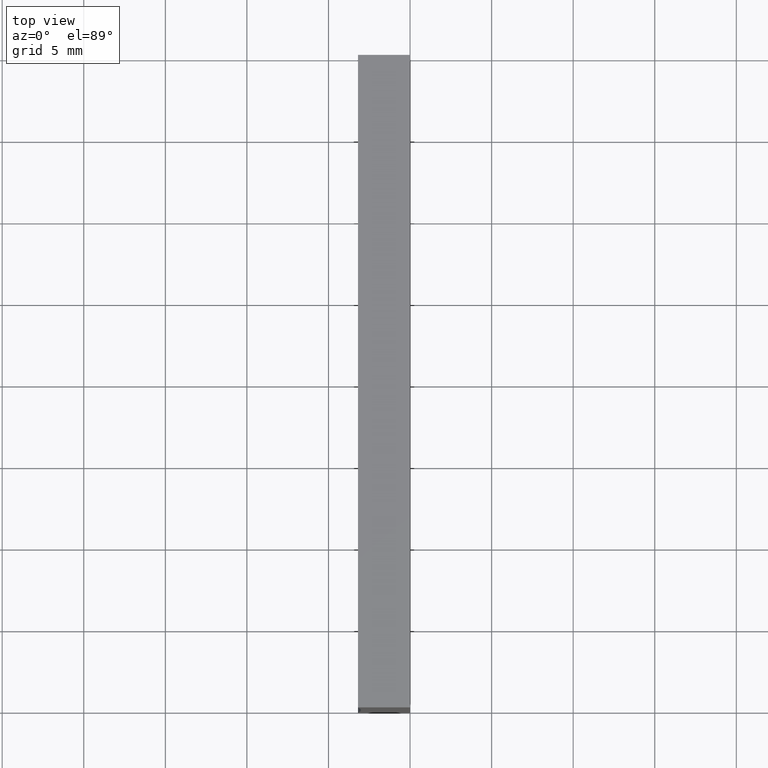
[diagram: clean part render]
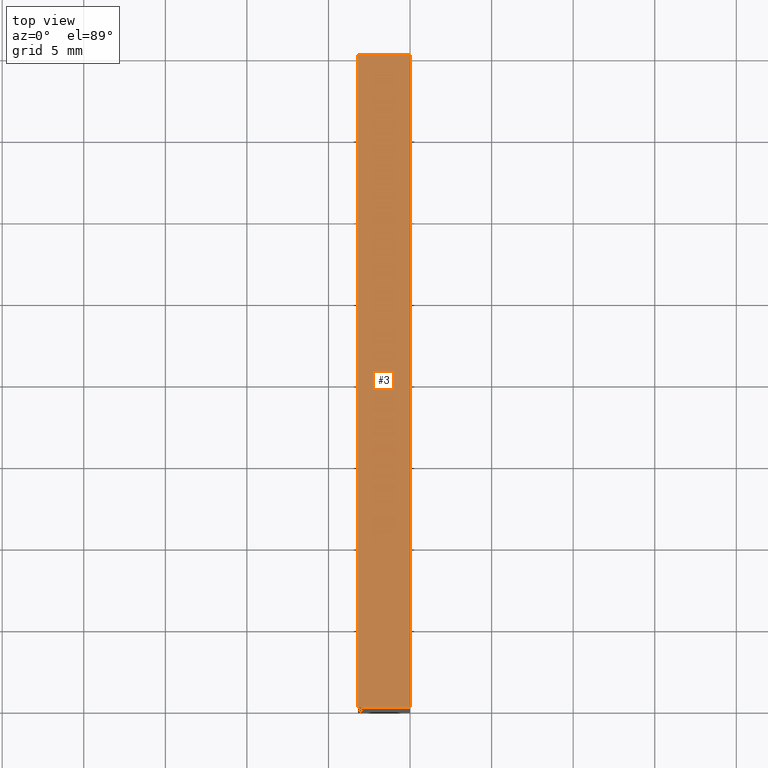
[diagram: same view with one face highlighted and labeled with its STEP entity id]
A machine part, top view. The second image highlights one B-rep face of the part: STEP entity #3.
In plain terms, the highlighted planar face has unit normal (-0, 0, -1).
Its self-contained STEP definition (entity closure, byte-faithful):
#3 = ADVANCED_FACE ( 'NONE', ( #160 ), #7, .F. ) ;
#7 = PLANE ( 'NONE',  #25 ) ;
#12 = LINE ( 'NONE', #123, #122 ) ;
#21 = VERTEX_POINT ( 'NONE', #146 ) ;
#25 = AXIS2_PLACEMENT_3D ( 'NONE', #44, #71, #163 ) ;
#29 = DIRECTION ( 'NONE',  ( 1.000000000000000000, -0.0000000000000000000, -1.086410295692778600E-015 ) ) ;
#35 = VECTOR ( 'NONE', #45, 1000.000000000000000 ) ;
#44 = CARTESIAN_POINT ( 'NONE',  ( 1.224646799147353300E-015, 40.00000000000000000, 20.00000000000000000 ) ) ;
#45 = DIRECTION ( 'NONE',  ( -0.0000000000000000000, -1.000000000000000000, -0.0000000000000000000 ) ) ;
#47 = LINE ( 'NONE', #198, #179 ) ;
#50 = LINE ( 'NONE', #197, #35 ) ;
#55 = ORIENTED_EDGE ( 'NONE', *, *, #116, .T. ) ;
#56 = LINE ( 'NONE', #110, #195 ) ;
#69 = ORIENTED_EDGE ( 'NONE', *, *, #149, .F. ) ;
#71 = DIRECTION ( 'NONE',  ( -1.086410295692778600E-015, 0.0000000000000000000, -1.000000000000000000 ) ) ;
#74 = VERTEX_POINT ( 'NONE', #158 ) ;
#95 = EDGE_LOOP ( 'NONE', ( #55, #131, #69, #134 ) ) ;
#97 = CARTESIAN_POINT ( 'NONE',  ( 1.224646799147353300E-015, 40.00000000000000000, 20.00000000000000000 ) ) ;
#110 = CARTESIAN_POINT ( 'NONE',  ( 1.224646799147353300E-015, 40.00000000000000000, 20.00000000000000000 ) ) ;
#116 = EDGE_CURVE ( 'NONE', #21, #74, #47, .T. ) ;
#117 = VERTEX_POINT ( 'NONE', #140 ) ;
#121 = DIRECTION ( 'NONE',  ( -0.0000000000000000000, -1.000000000000000000, -0.0000000000000000000 ) ) ;
#122 = VECTOR ( 'NONE', #29, 1000.000000000000000 ) ;
#123 = CARTESIAN_POINT ( 'NONE',  ( 1.224646799147353300E-015, 40.00000000000000000, 20.00000000000000000 ) ) ;
#131 = ORIENTED_EDGE ( 'NONE', *, *, #142, .F. ) ;
#134 = ORIENTED_EDGE ( 'NONE', *, *, #156, .T. ) ;
#140 = CARTESIAN_POINT ( 'NONE',  ( -3.193496016844379300, 40.00000000000000000, 20.00000000000000400 ) ) ;
#142 = EDGE_CURVE ( 'NONE', #165, #74, #56, .T. ) ;
#146 = CARTESIAN_POINT ( 'NONE',  ( -3.193496016844379300, 0.0000000000000000000, 20.00000000000000400 ) ) ;
#149 = EDGE_CURVE ( 'NONE', #117, #165, #12, .T. ) ;
#156 = EDGE_CURVE ( 'NONE', #117, #21, #50, .T. ) ;
#158 = CARTESIAN_POINT ( 'NONE',  ( 1.224646799147353300E-015, 0.0000000000000000000, 20.00000000000000000 ) ) ;
#160 = FACE_OUTER_BOUND ( 'NONE', #95, .T. ) ;
#163 = DIRECTION ( 'NONE',  ( -1.000000000000000000, 0.0000000000000000000, 1.086410295692778600E-015 ) ) ;
#165 = VERTEX_POINT ( 'NONE', #97 ) ;
#179 = VECTOR ( 'NONE', #200, 1000.000000000000000 ) ;
#195 = VECTOR ( 'NONE', #121, 1000.000000000000000 ) ;
#197 = CARTESIAN_POINT ( 'NONE',  ( -3.193496016844379300, 40.00000000000000000, 20.00000000000000400 ) ) ;
#198 = CARTESIAN_POINT ( 'NONE',  ( 1.224646799147353300E-015, 0.0000000000000000000, 20.00000000000000000 ) ) ;
#200 = DIRECTION ( 'NONE',  ( 1.000000000000000000, -0.0000000000000000000, -1.086410295692778600E-015 ) ) ;